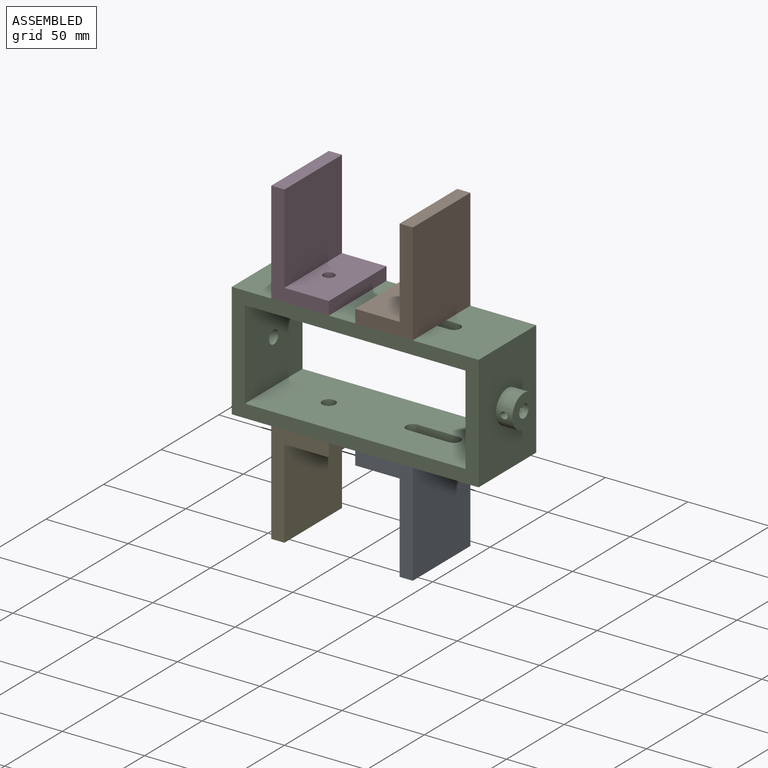
[diagram: assembled view]
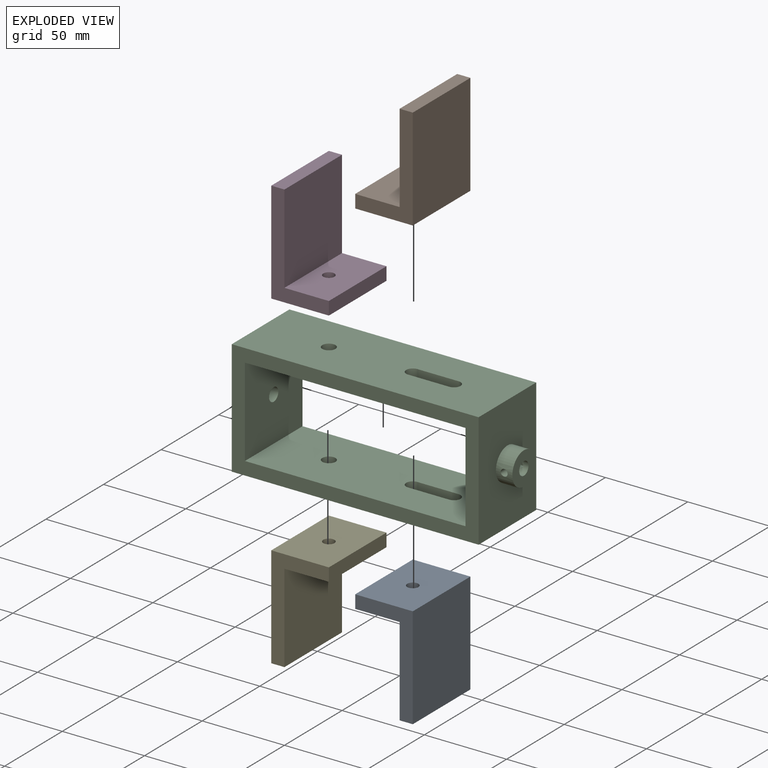
[diagram: exploded view]
GUIDED TOUR — MATED ASSEMBLY (Onshape document 4a881b36ca807dcd78a77efa, AutoMate assembly 4a881b36ca807dcd78a77efa_d1e4fb262f82ce90d0bfa4f5_8b90f8f856043346f48b5ef7_default)

This assembly has 5 components, labeled P0..P4 below (a component is one placed occurrence of a part; the same part can appear more than once), held together by 4 mates. A mate is a constraint between two components; its type names the relative motion it leaves free:
  FASTENED — locks the two components together rigidly (no relative motion).
Axis/direction vectors are unit vectors and 'through' points are millimeter coordinates, both in the assembly's world frame.

MATES
  1. FASTENED "Fastened 4": P0 <-> P2, direction (0.000, 0.000, 1.000) through (25.50, -25.00, -46.67) mm
  2. FASTENED "Fastened 2": P3 <-> P2, direction (0.000, 0.000, -1.000) through (-25.50, -25.00, 23.33) mm
  3. FASTENED "Fastened 1": P4 <-> P2, direction (0.000, 0.000, 1.000) through (-25.50, -25.00, -46.67) mm
  4. FASTENED "Fastened 3": P1 <-> P2, direction (0.000, 0.000, -1.000) through (25.50, -25.00, 23.33) mm

ASSEMBLY ORDER
  1. P3 — the base component [order verified]
  2. P1 [order verified]
  3. P2 [order verified]
  4. P4 [order verified]
  5. P0 [order verified]
Order-tag legend:
  [order verified] — this step's position reverses a verified removal order: the component was checked to insert without passing through the ones already placed.

Of the 5 components, 4 carry the full construction recipe — the FeatureScript program that regenerates the part's solid from scratch; the rest are supplied as boundary geometry only.
Each toured component is shown spotlighted twice — in the assembled view, then in the exploded view, where a leader line traces a displaced component back to its assembled socket (saturated green if recipe-attached, orange if geometry-only; every other component desaturated gray) — followed by its recipe or geometry summary and the mates that hold it.
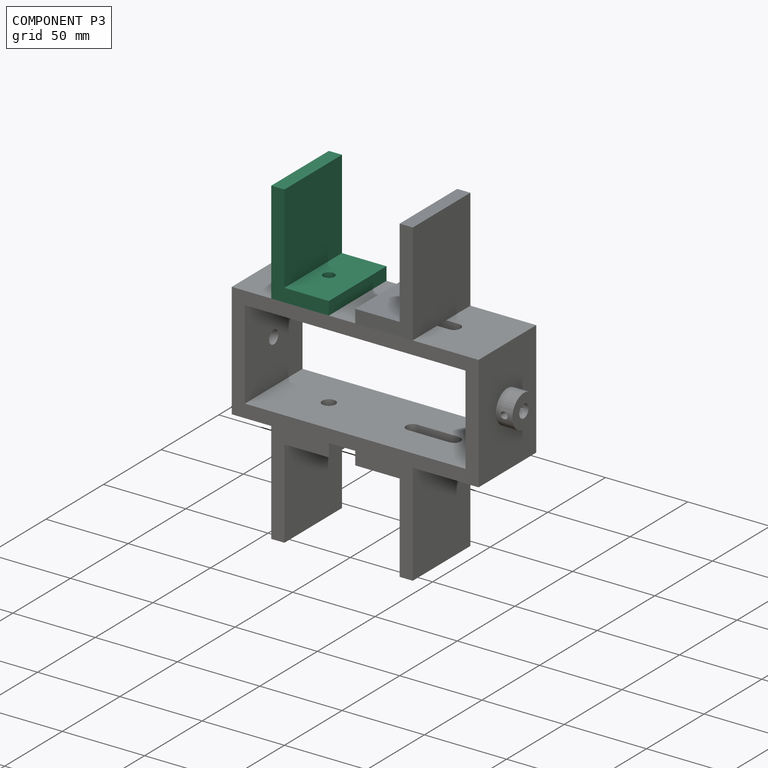
[diagram: component P3 — assembled]
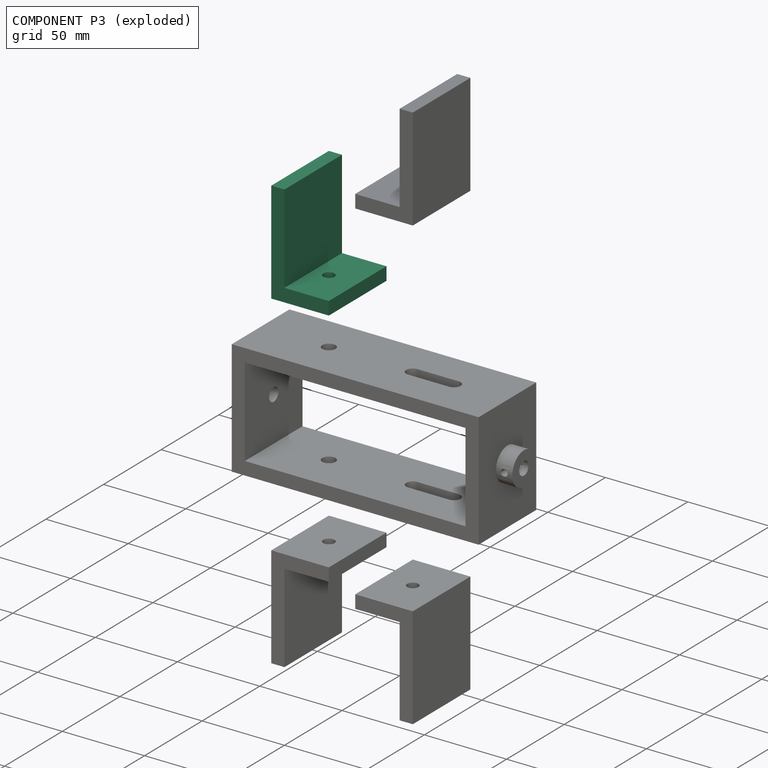
[diagram: component P3 — exploded]
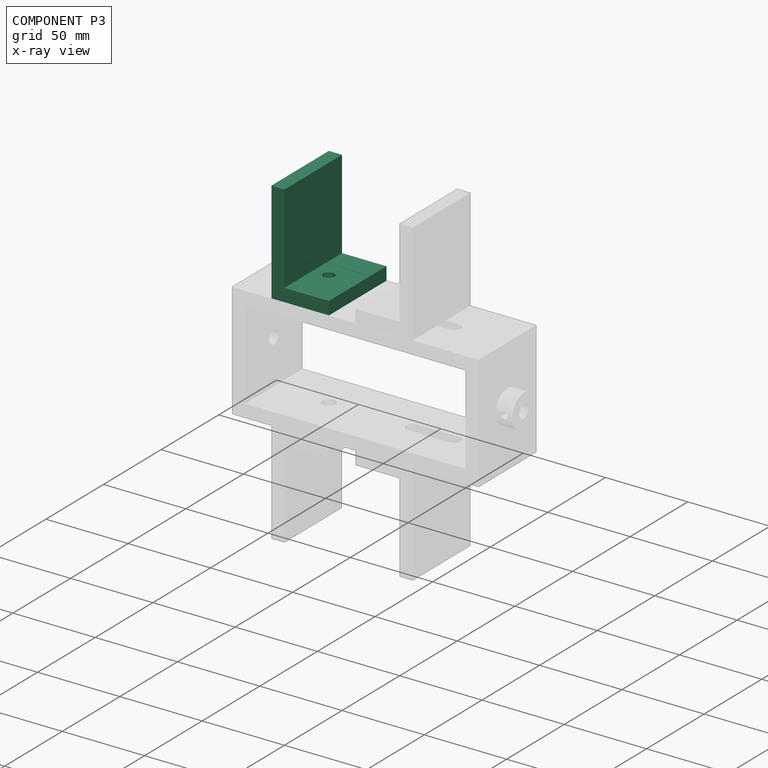
[diagram: component P3 — x-ray view]
COMPONENT P3 — recipe-attached (CADFS 00529402, mesh-verified: the recipe's output STEP matches this component's geometry to below the mesh-comparison resolution (tessellation chordal tolerance ~0.13 mm)).
Held by: FASTENED mate "Fastened 2" to P2.
Construction recipe (FeatureScript — the CAD program that rebuilds this solid; sketch coordinates are in the units given by the * unit suffixes, e.g. mm):

FeatureScript 1511;
import(path : "onshape/std/geometry.fs", version : "1511.0");
import(path : "onshape/std/common.fs", version : "1511.0");
const mm = millimeter;
const VERTEX = EntityType.VERTEX;
const EDGE = EntityType.EDGE;
const FACE = EntityType.FACE;
const BODY = EntityType.BODY;
function v(x, y){return vector(x, y);}
function OD(order){return orderDisambiguation(order);}
function OSD(set){return originalSetDisambiguation(set);}
function TD(topology){return topologyDisambiguation(topology);}
function TDD(query){return trueDependencyDisambiguation(query);}
function sQuery(a, b, c) {return sketchEntityQuery(a, b, c);}

annotation { "Feature Type Name" : "Feature", "Feature Type Description" : "" }
export const myFeature = defineFeature(function(context is Context, id is Id, definition is map)
    precondition{}
    {
        {
            var Q0;
            Q0=qCreatedBy(makeId("Front.planeOp"),FACE);
            var sketch = newSketch(context, id + "F0", { "sketchPlane" : qUnion([Q0])});
            skLineSegment(sketch, "E0.bottom", {"start": v(-7.8, 1.1) * mm, "end": v(19.2, 1.1) * mm});
            skLineSegment(sketch, "E0.top", {"start": v(-7.8, -6.9) * mm, "end": v(19.2, -6.9) * mm});
            skLineSegment(sketch, "E0.left", {"start": v(-7.8, 1.1) * mm, "end": v(-7.8, -6.9) * mm});
            skLineSegment(sketch, "E0.right", {"start": v(19.2, 1.1) * mm, "end": v(19.2, -6.9) * mm});
            skLineSegment(sketch, "E1.bottom", {"start": v(19.2, -6.9) * mm, "end": v(27.2, -6.9) * mm});
            skLineSegment(sketch, "E1.top", {"start": v(19.2, -6.9) * mm, "end": v(27.2, -6.9) * mm});
            skLineSegment(sketch, "E1.left", {"start": v(19.2, -6.9) * mm, "end": v(19.2, -6.9) * mm});
            skLineSegment(sketch, "E1.right", {"start": v(27.2, -6.9) * mm, "end": v(27.2, -6.9) * mm});
            skLineSegment(sketch, "E2.top", {"start": v(19.2, 55.1) * mm, "end": v(27.2, 55.1) * mm});
            skLineSegment(sketch, "E2.left", {"start": v(19.2, -6.9) * mm, "end": v(19.2, 55.1) * mm});
            skLineSegment(sketch, "E2.right", {"start": v(27.2, -6.9) * mm, "end": v(27.2, 55.1) * mm});
            skSolve(sketch);
        }
        {
            var Q0;
            {var subQ0=sQuery(id+"F0.wireOp",EDGE,"E0.bottom");Q0=makeQuery(id+"F0.imprint","IMPRINT",FACE,{"disambiguationData":[TD([[makeQuery(id+"F0.imprint","IMPRINT",EDGE,{"derivedFrom":subQ0}),-1.0]])]});}
            var Q1;
            {var subQ3=sQuery(id+"F0.wireOp",EDGE,"E1.bottom");Q1=makeQuery(id+"F0.imprint","IMPRINT",FACE,{"disambiguationData":[TD([[makeQuery(id+"F0.imprint","IMPRINT",EDGE,{"derivedFrom":subQ3}),1.0]])]});}
            extrude(context, id + "F1", {"entities" : qUnion([Q0, Q1]), "depth" : 50 * mm, "offsetDistance" : 25 * mm});
        }
        {
            var Q0;
            Q0=makeQuery(id+"F1.opExtrude","SWEPT_FACE",FACE,{"disambiguationData":[OSD([sQuery(id+"F0.wireOp",EDGE,"E0.top"),sQuery(id+"F0.wireOp",EDGE,"E1.bottom")])]});
            var sketch = newSketch(context, id + "F2", { "sketchPlane" : qUnion([Q0])});
            skLineSegment(sketch, "E3", {"start": v(27.2, 25) * mm, "end": v(-7.8, 25) * mm});
            skLineSegment(sketch, "E4", {"start": v(9.7, 0) * mm, "end": v(9.7, 50) * mm});
            skPoint(sketch, "E5", {"position": v(9.7, 25) * mm});
            skSolve(sketch);
        }
        {
            var Q0;
            Q0=sQuery(id+"F2.wireOp",VERTEX,"E5");
            var Q1;
            Q1=makeQuery(id+"F1.opExtrude","SWEPT_BODY",BODY,{"disambiguationData":[OSD([sQuery(id+"F0.wireOp",EDGE,"E0.bottom"),sQuery(id+"F0.wireOp",EDGE,"E0.top"),sQuery(id+"F0.wireOp",EDGE,"E0.left"),sQuery(id+"F0.wireOp",EDGE,"E1.bottom"),sQuery(id+"F0.wireOp",EDGE,"E2.top"),sQuery(id+"F0.wireOp",EDGE,"E2.left"),sQuery(id+"F0.wireOp",EDGE,"E2.right")])]});
            hole(context, id + "F3", {"style" : HoleStyle.SIMPLE, "endStyle" : HoleEndStyle.THROUGH, "standardTappedOrClearance" : lookupTablePath({ "standard" : "ISO", "engagement" : "75%", "pitch" : "1.25 mm", "size" : "M8", "type" : "Tapped" }), "standardBlindInLast" : lookupTablePath({ "standard" : "ISO", "engagement" : "75%", "pitch" : "1.25 mm", "size" : "M8", "type" : "Tapped" }), "holeDiameter" : 6.8 * mm, "showTappedDepth" : true, "isTappedThrough" : true, "tappedDepth" : 12 * mm, "tapClearance" : 3, "locations" : qUnion([Q0]), "scope" : qUnion([Q1]), "majorDiameter" : 8 * mm});
        }
    });
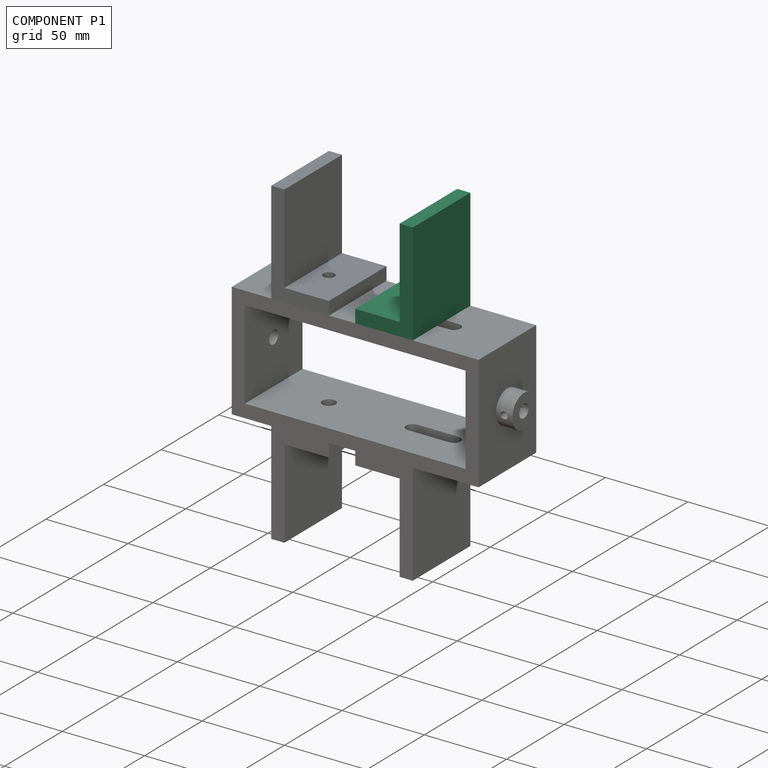
[diagram: component P1 — assembled]
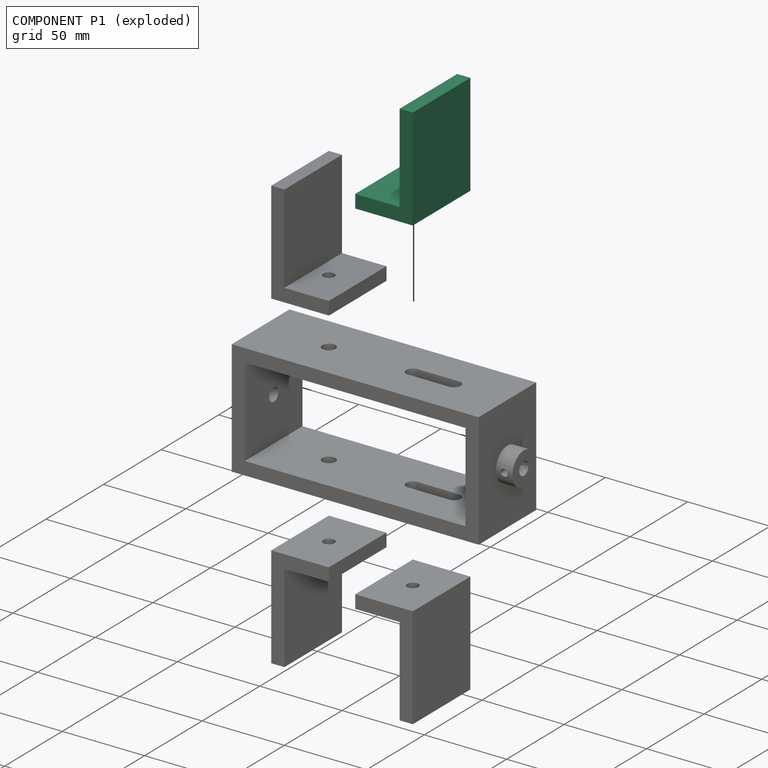
[diagram: component P1 — exploded]
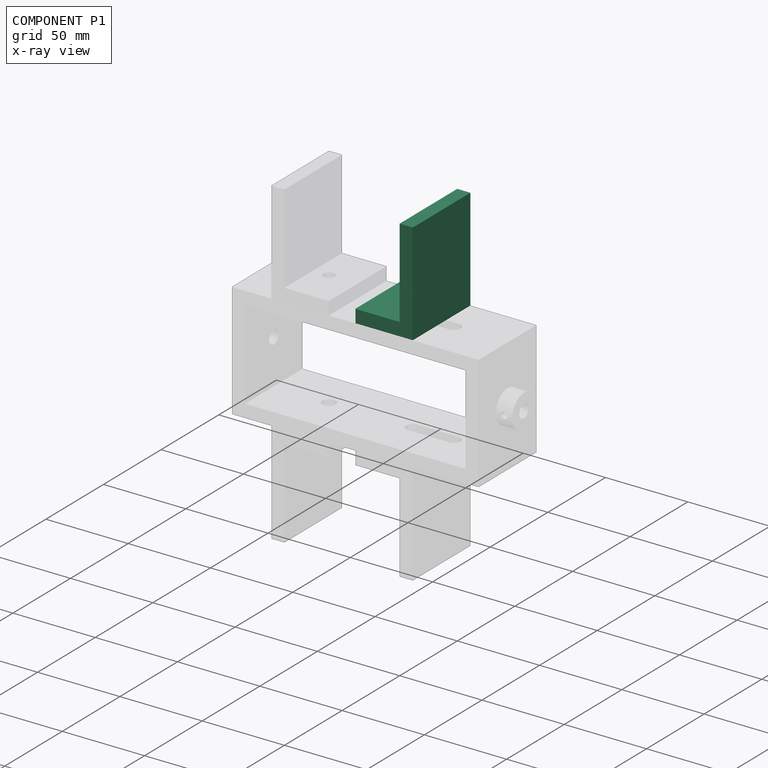
[diagram: component P1 — x-ray view]
COMPONENT P1 — same part as P0 (CADFS 00529402); its construction recipe is shown at P0.
Held by: FASTENED mate "Fastened 3" to P2.
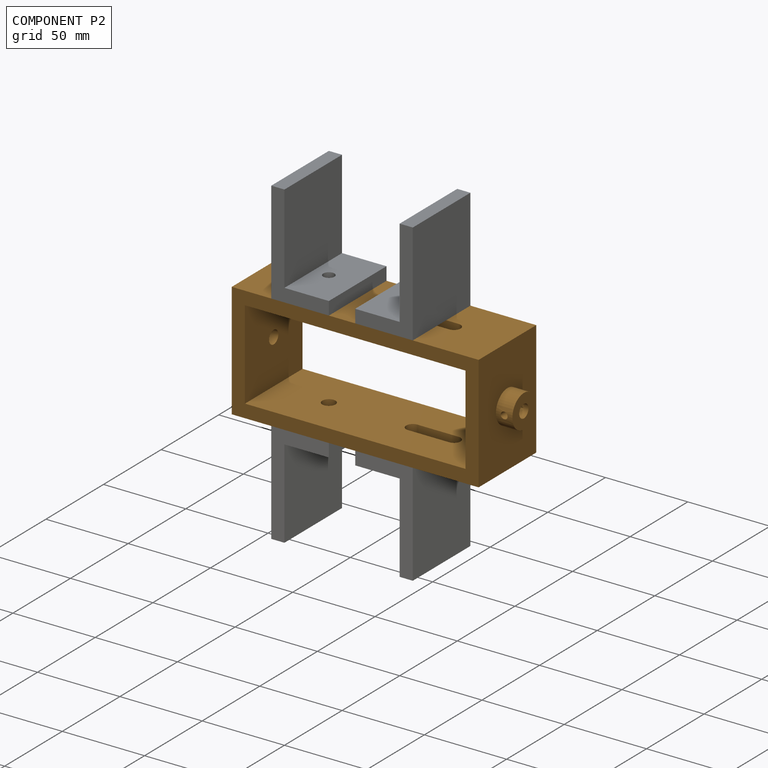
[diagram: component P2 — assembled]
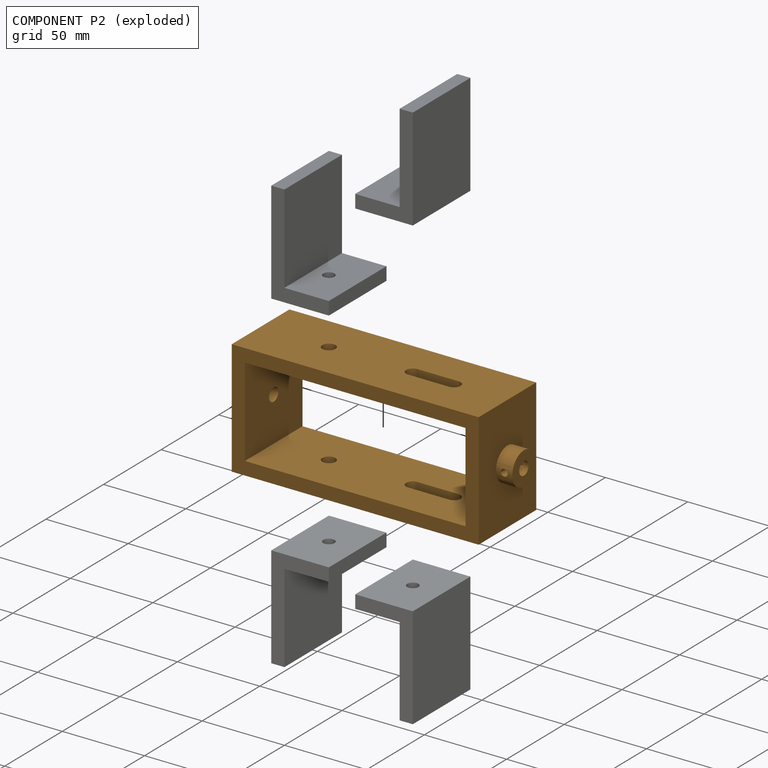
[diagram: component P2 — exploded]
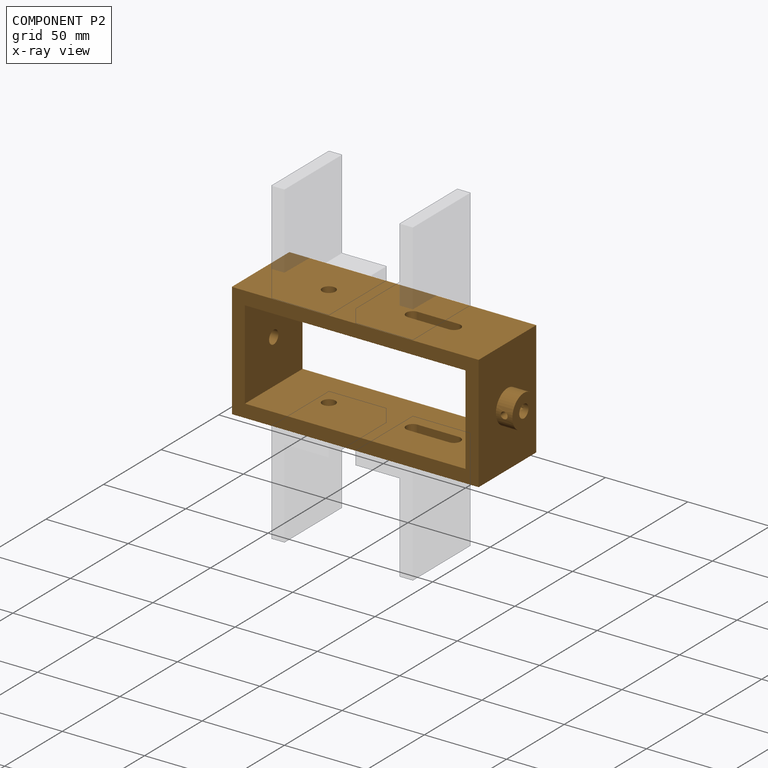
[diagram: component P2 — x-ray view]
COMPONENT P2 — geometry summary (no construction recipe available for this part):
  bounding box: 170.0 x 70.0 x 50.0 mm
  B-rep topology: 1 solid, 32 faces, 164 edges
  volume: 162644 mm^3 (27% of its bounding box)
  symmetry: 2-fold rotationally symmetric about the x axis; mirror-symmetric across its y mid-plane, z mid-plane
Held by: FASTENED mate "Fastened 4" to P0; FASTENED mate "Fastened 2" to P3; FASTENED mate "Fastened 1" to P4; FASTENED mate "Fastened 3" to P1.
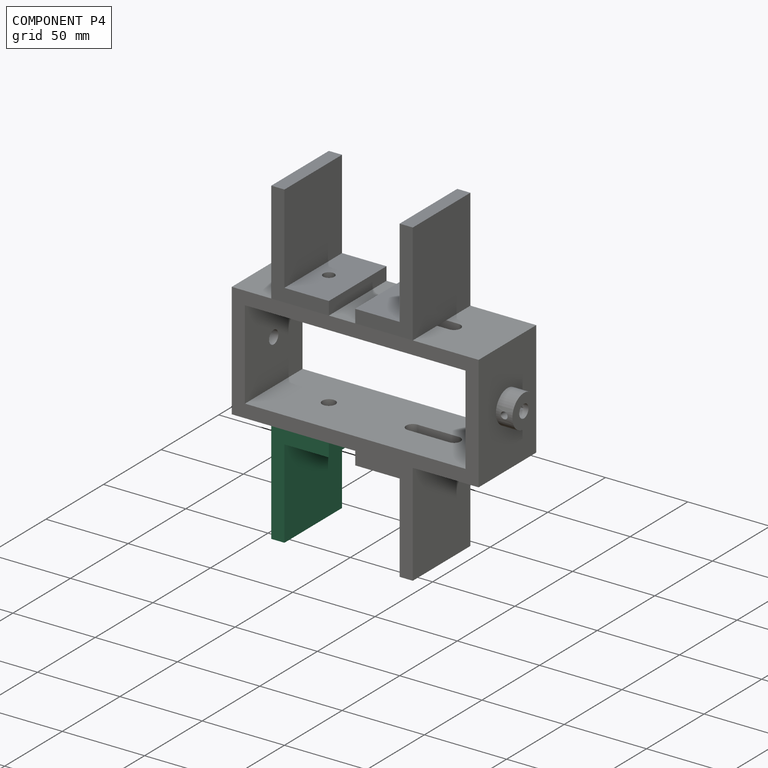
[diagram: component P4 — assembled]
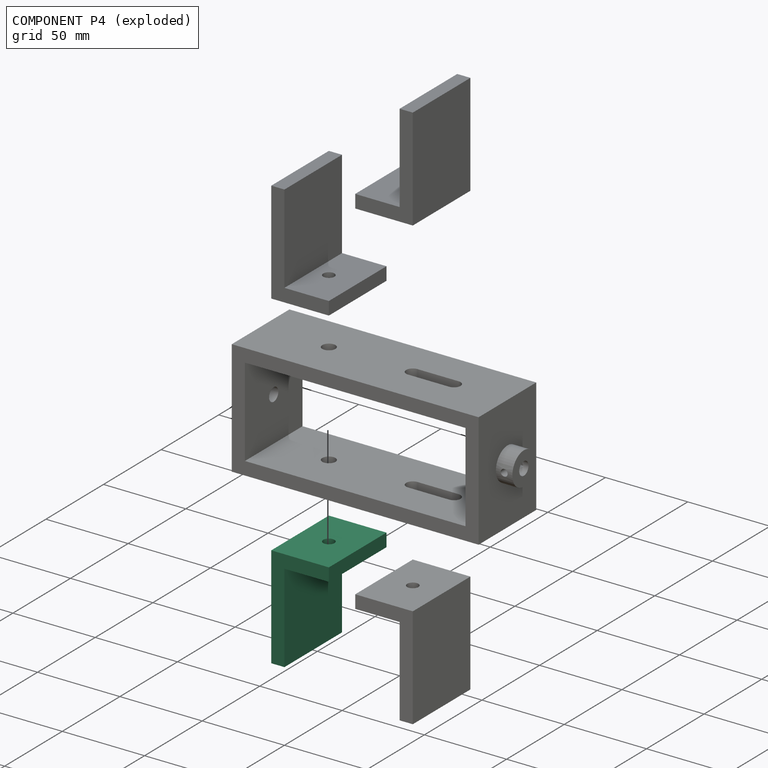
[diagram: component P4 — exploded]
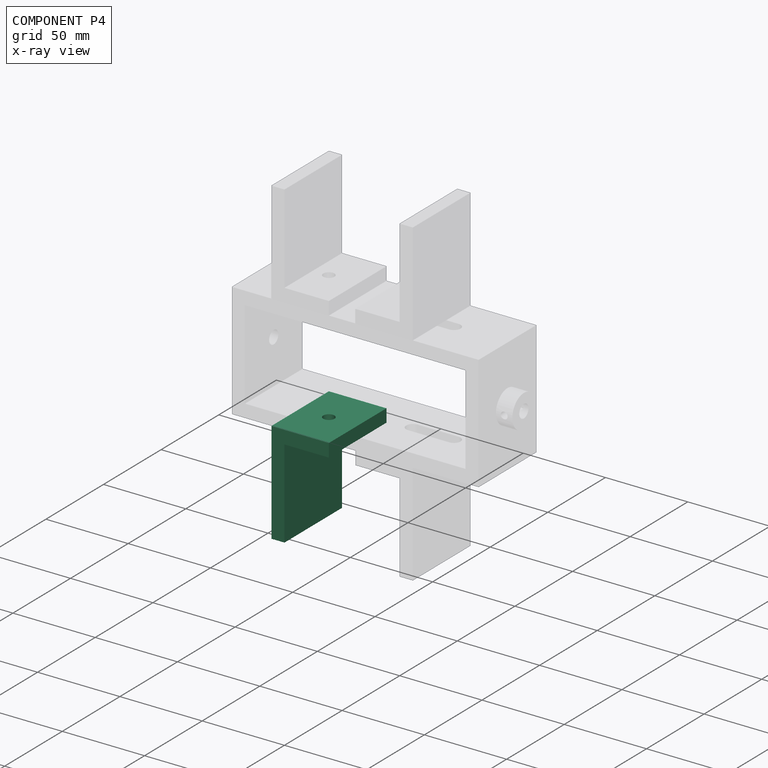
[diagram: component P4 — x-ray view]
COMPONENT P4 — same part as P3 (CADFS 00529402); its construction recipe is shown at P3.
Held by: FASTENED mate "Fastened 1" to P2.
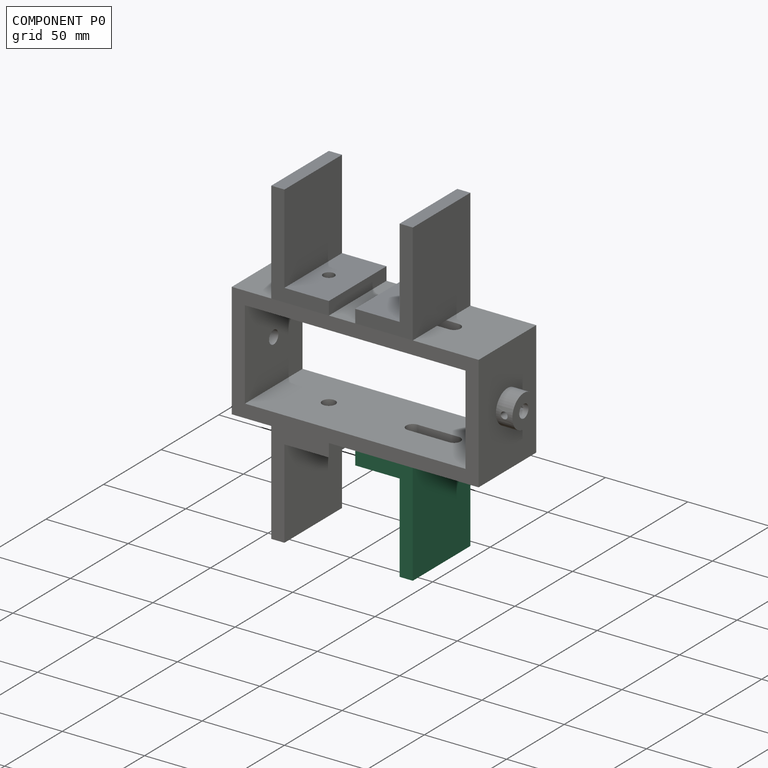
[diagram: component P0 — assembled]
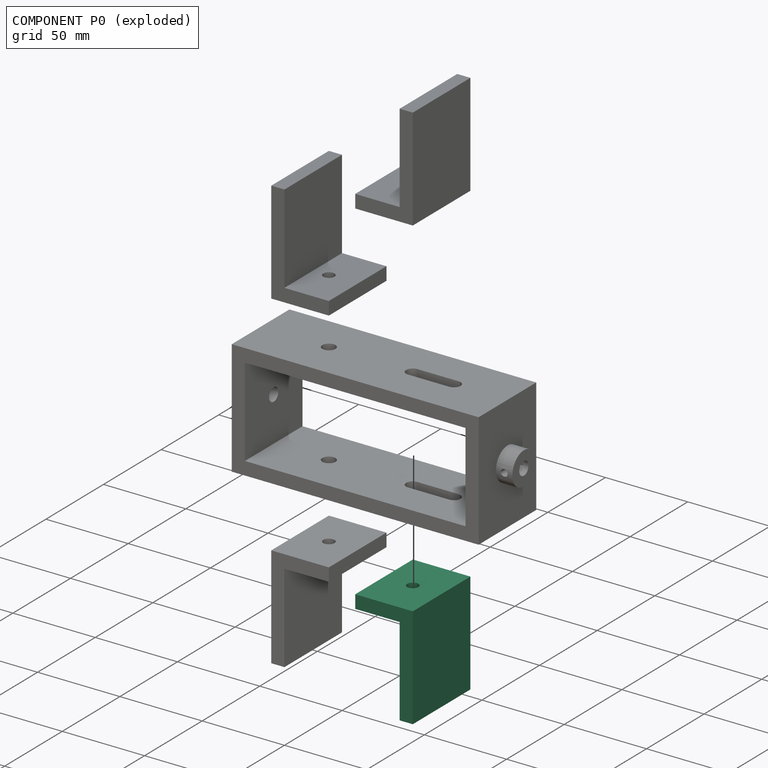
[diagram: component P0 — exploded]
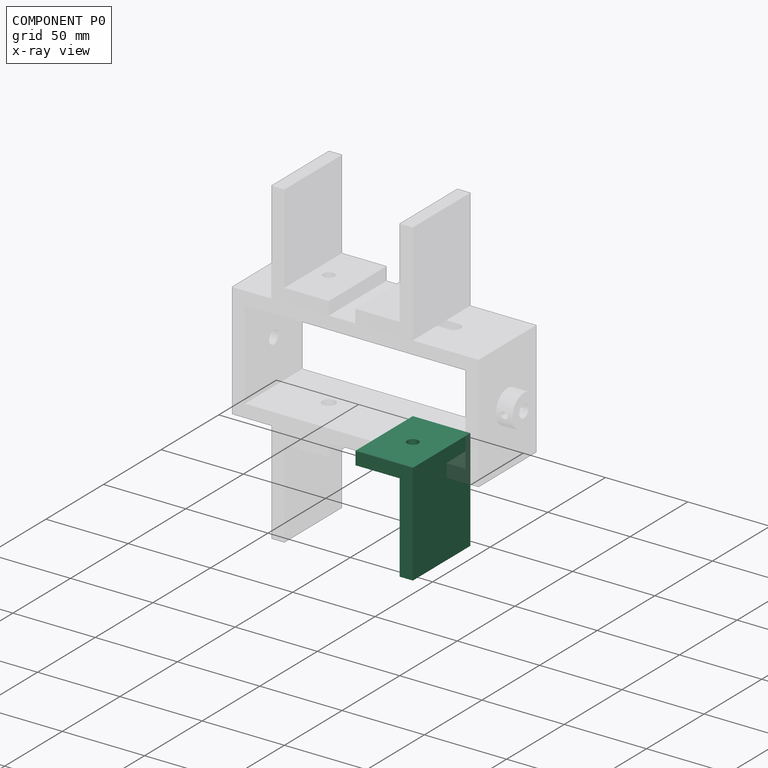
[diagram: component P0 — x-ray view]
COMPONENT P0 — recipe-attached (CADFS 00529402, mesh-verified: the recipe's output STEP matches this component's geometry to below the mesh-comparison resolution (tessellation chordal tolerance ~0.13 mm)).
Held by: FASTENED mate "Fastened 4" to P2.
Construction recipe (FeatureScript — the CAD program that rebuilds this solid; sketch coordinates are in the units given by the * unit suffixes, e.g. mm):

FeatureScript 1511;
import(path : "onshape/std/geometry.fs", version : "1511.0");
import(path : "onshape/std/common.fs", version : "1511.0");
const mm = millimeter;
const VERTEX = EntityType.VERTEX;
const EDGE = EntityType.EDGE;
const FACE = EntityType.FACE;
const BODY = EntityType.BODY;
function v(x, y){return vector(x, y);}
function OD(order){return orderDisambiguation(order);}
function OSD(set){return originalSetDisambiguation(set);}
function TD(topology){return topologyDisambiguation(topology);}
function TDD(query){return trueDependencyDisambiguation(query);}
function sQuery(a, b, c) {return sketchEntityQuery(a, b, c);}

annotation { "Feature Type Name" : "Feature", "Feature Type Description" : "" }
export const myFeature = defineFeature(function(context is Context, id is Id, definition is map)
    precondition{}
    {
        {
            var Q0;
            Q0=qCreatedBy(makeId("Front.planeOp"),FACE);
            var sketch = newSketch(context, id + "F0", { "sketchPlane" : qUnion([Q0])});
            skLineSegment(sketch, "E0.bottom", {"start": v(-7.8, 1.1) * mm, "end": v(19.2, 1.1) * mm});
            skLineSegment(sketch, "E0.top", {"start": v(-7.8, -6.9) * mm, "end": v(19.2, -6.9) * mm});
            skLineSegment(sketch, "E0.left", {"start": v(-7.8, 1.1) * mm, "end": v(-7.8, -6.9) * mm});
            skLineSegment(sketch, "E0.right", {"start": v(19.2, 1.1) * mm, "end": v(19.2, -6.9) * mm});
            skLineSegment(sketch, "E1.bottom", {"start": v(19.2, -6.9) * mm, "end": v(27.2, -6.9) * mm});
            skLineSegment(sketch, "E1.top", {"start": v(19.2, -6.9) * mm, "end": v(27.2, -6.9) * mm});
            skLineSegment(sketch, "E1.left", {"start": v(19.2, -6.9) * mm, "end": v(19.2, -6.9) * mm});
            skLineSegment(sketch, "E1.right", {"start": v(27.2, -6.9) * mm, "end": v(27.2, -6.9) * mm});
            skLineSegment(sketch, "E2.top", {"start": v(19.2, 55.1) * mm, "end": v(27.2, 55.1) * mm});
            skLineSegment(sketch, "E2.left", {"start": v(19.2, -6.9) * mm, "end": v(19.2, 55.1) * mm});
            skLineSegment(sketch, "E2.right", {"start": v(27.2, -6.9) * mm, "end": v(27.2, 55.1) * mm});
            skSolve(sketch);
        }
        {
            var Q0;
            {var subQ0=sQuery(id+"F0.wireOp",EDGE,"E0.bottom");Q0=makeQuery(id+"F0.imprint","IMPRINT",FACE,{"disambiguationData":[TD([[makeQuery(id+"F0.imprint","IMPRINT",EDGE,{"derivedFrom":subQ0}),-1.0]])]});}
            var Q1;
            {var subQ3=sQuery(id+"F0.wireOp",EDGE,"E1.bottom");Q1=makeQuery(id+"F0.imprint","IMPRINT",FACE,{"disambiguationData":[TD([[makeQuery(id+"F0.imprint","IMPRINT",EDGE,{"derivedFrom":subQ3}),1.0]])]});}
            extrude(context, id + "F1", {"entities" : qUnion([Q0, Q1]), "depth" : 50 * mm, "offsetDistance" : 25 * mm});
        }
        {
            var Q0;
            Q0=makeQuery(id+"F1.opExtrude","SWEPT_FACE",FACE,{"disambiguationData":[OSD([sQuery(id+"F0.wireOp",EDGE,"E0.top"),sQuery(id+"F0.wireOp",EDGE,"E1.bottom")])]});
            var sketch = newSketch(context, id + "F2", { "sketchPlane" : qUnion([Q0])});
            skLineSegment(sketch, "E3", {"start": v(27.2, 25) * mm, "end": v(-7.8, 25) * mm});
            skLineSegment(sketch, "E4", {"start": v(9.7, 0) * mm, "end": v(9.7, 50) * mm});
            skPoint(sketch, "E5", {"position": v(9.7, 25) * mm});
            skSolve(sketch);
        }
        {
            var Q0;
            Q0=sQuery(id+"F2.wireOp",VERTEX,"E5");
            var Q1;
            Q1=makeQuery(id+"F1.opExtrude","SWEPT_BODY",BODY,{"disambiguationData":[OSD([sQuery(id+"F0.wireOp",EDGE,"E0.bottom"),sQuery(id+"F0.wireOp",EDGE,"E0.top"),sQuery(id+"F0.wireOp",EDGE,"E0.left"),sQuery(id+"F0.wireOp",EDGE,"E1.bottom"),sQuery(id+"F0.wireOp",EDGE,"E2.top"),sQuery(id+"F0.wireOp",EDGE,"E2.left"),sQuery(id+"F0.wireOp",EDGE,"E2.right")])]});
            hole(context, id + "F3", {"style" : HoleStyle.SIMPLE, "endStyle" : HoleEndStyle.THROUGH, "standardTappedOrClearance" : lookupTablePath({ "standard" : "ISO", "engagement" : "75%", "pitch" : "1.25 mm", "size" : "M8", "type" : "Tapped" }), "standardBlindInLast" : lookupTablePath({ "standard" : "ISO", "engagement" : "75%", "pitch" : "1.25 mm", "size" : "M8", "type" : "Tapped" }), "holeDiameter" : 6.8 * mm, "showTappedDepth" : true, "isTappedThrough" : true, "tappedDepth" : 12 * mm, "tapClearance" : 3, "locations" : qUnion([Q0]), "scope" : qUnion([Q1]), "majorDiameter" : 8 * mm});
        }
    });
PROVENANCE & LICENSES
Assembly (occurrences, transforms, mates, per-part STEP geometry): AutoMate dataset, Zenodo record 7776208, CC0.
Construction recipes: CADFS (HuggingFace VladPyatov/CADFS, CC-BY-4.0, layered over the ABC dataset), FeatureScript reconstruction programs keyed by ABC model id.
Join: ABC meta listings map ABC model id -> Onshape documentId; within a shared document, parts are matched by geometric signature (bounding-box dims + volume at 0.1% relative tolerance, exact B-rep face/solid counts).
Verification: 4 of this assembly's 5 components carry a recipe attachment, and every attachment is mesh-verified: the CADFS STEP and the AutoMate member STEP were compared as meshes in their shared local frame (symmetric sampled-point-to-mesh distance); worst across the 4 attachments: below the mesh-comparison resolution (tessellation chordal tolerance ~0.13 mm) on a 87 mm part.
Renders: orthographic iso camera (az 35 / el 25); the floor grid conveys scale (grid pitch printed in each image; no ruler). In the exploded view each component is displaced by its stored offset vector: the offsets alone carry the explosion direction (mate normal/axis signs are not orientation cues and do not encode it), and separation distances are assigned per mate-chain, not proportionally to assembly-order depth.
